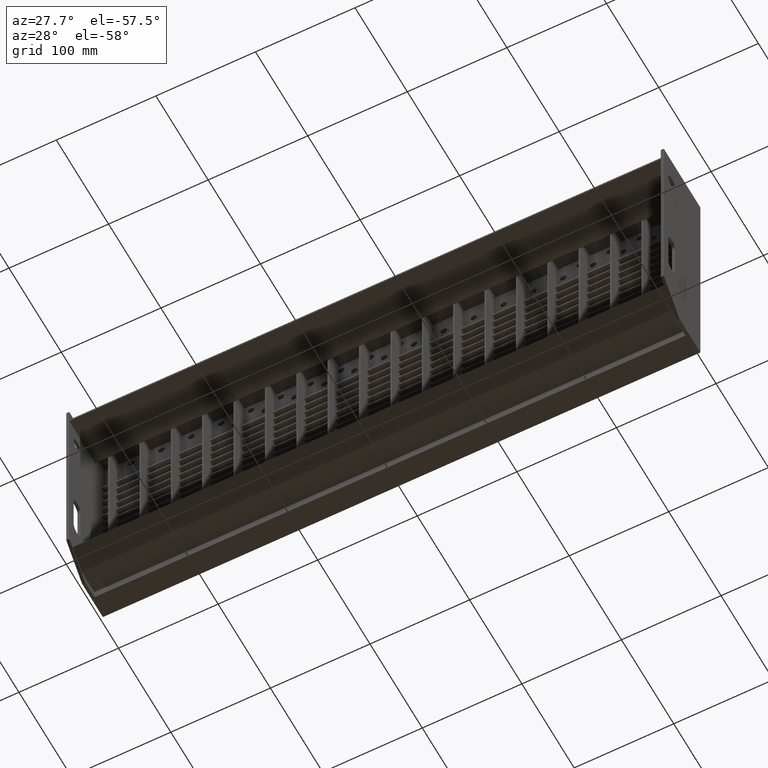
[diagram: clean part render]
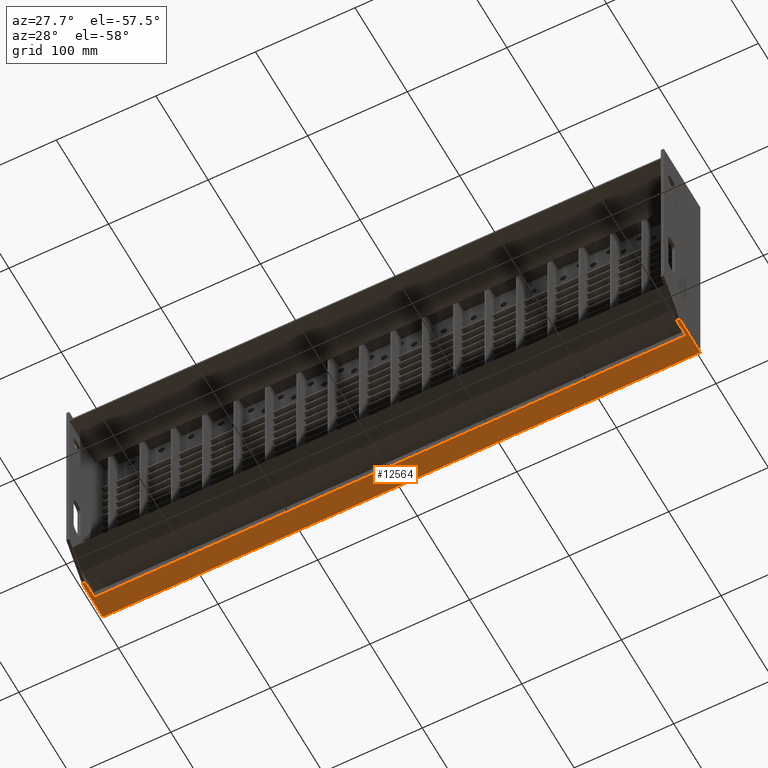
[diagram: same view with one face highlighted and labeled with its STEP entity id]
A machine part, auxiliary view. The second image highlights one B-rep face of the part: STEP entity #12564.
In plain terms, the highlighted planar face has unit normal (0, 0, -1).
Its self-contained STEP definition (entity closure, byte-faithful):
#10 = DIRECTION ( 'NONE',  ( 0.0000000000000000000, 0.0000000000000000000, -1.000000000000000000 ) ) ;
#89 = EDGE_CURVE ( 'NONE', #11671, #13235, #15089, .T. ) ;
#1422 = CARTESIAN_POINT ( 'NONE',  ( -297.0000000000000000, 30.00000000000011700, -240.0000000000000000 ) ) ;
#1693 = DIRECTION ( 'NONE',  ( 1.000000000000000000, 0.0000000000000000000, 0.0000000000000000000 ) ) ;
#2113 = LINE ( 'NONE', #1422, #23220 ) ;
#2391 = ORIENTED_EDGE ( 'NONE', *, *, #11230, .F. ) ;
#3293 = EDGE_CURVE ( 'NONE', #13849, #16596, #24852, .T. ) ;
#3748 = DIRECTION ( 'NONE',  ( 1.000000000000000000, -0.0000000000000000000, -0.0000000000000000000 ) ) ;
#4230 = VECTOR ( 'NONE', #24092, 1000.000000000000000 ) ;
#4386 = EDGE_CURVE ( 'NONE', #15659, #21180, #6316, .T. ) ;
#4472 = LINE ( 'NONE', #26147, #10547 ) ;
#4907 = CARTESIAN_POINT ( 'NONE',  ( 297.0000000000000000, 70.00000000000011400, -240.0000000000000000 ) ) ;
#5304 = CARTESIAN_POINT ( 'NONE',  ( -300.0000000000000000, 70.00000000000011400, -240.0000000000000000 ) ) ;
#5682 = VECTOR ( 'NONE', #10458, 1000.000000000000000 ) ;
#6014 = CARTESIAN_POINT ( 'NONE',  ( -297.0000000000000000, 48.00000000000011400, -240.0000000000000000 ) ) ;
#6201 = LINE ( 'NONE', #5304, #16403 ) ;
#6316 = LINE ( 'NONE', #22779, #5682 ) ;
#6882 = CARTESIAN_POINT ( 'NONE',  ( 297.0000000000000000, 48.00000000000011400, -240.0000000000000000 ) ) ;
#7783 = EDGE_CURVE ( 'NONE', #13849, #21928, #2113, .T. ) ;
#8631 = ORIENTED_EDGE ( 'NONE', *, *, #12115, .F. ) ;
#9006 = ORIENTED_EDGE ( 'NONE', *, *, #3293, .F. ) ;
#9353 = CARTESIAN_POINT ( 'NONE',  ( -300.0000000000000000, 30.00000000000011700, -240.0000000000000000 ) ) ;
#9827 = CARTESIAN_POINT ( 'NONE',  ( 300.0000000000000000, 70.00000000000011400, -240.0000000000000000 ) ) ;
#10225 = PLANE ( 'NONE',  #23531 ) ;
#10458 = DIRECTION ( 'NONE',  ( -0.0000000000000000000, 1.000000000000000000, -0.0000000000000000000 ) ) ;
#10547 = VECTOR ( 'NONE', #1693, 1000.000000000000000 ) ;
#10920 = ORIENTED_EDGE ( 'NONE', *, *, #7783, .T. ) ;
#11230 = EDGE_CURVE ( 'NONE', #16596, #21180, #15043, .T. ) ;
#11671 = VERTEX_POINT ( 'NONE', #24582 ) ;
#12038 = CARTESIAN_POINT ( 'NONE',  ( -297.0000000000000000, 30.00000000000011700, -240.0000000000000000 ) ) ;
#12115 = EDGE_CURVE ( 'NONE', #15659, #11671, #4472, .T. ) ;
#12281 = CARTESIAN_POINT ( 'NONE',  ( 297.0000000000000000, 70.00000000000011400, -240.0000000000000000 ) ) ;
#12564 = ADVANCED_FACE ( 'NONE', ( #15299 ), #10225, .T. ) ;
#13045 = EDGE_LOOP ( 'NONE', ( #24319, #8631, #17683, #2391, #9006, #10920, #19739, #15306 ) ) ;
#13235 = VERTEX_POINT ( 'NONE', #9827 ) ;
#13399 = VECTOR ( 'NONE', #23335, 1000.000000000000000 ) ;
#13849 = VERTEX_POINT ( 'NONE', #12038 ) ;
#14330 = DIRECTION ( 'NONE',  ( -1.000000000000000000, 0.0000000000000000000, -0.0000000000000000000 ) ) ;
#14688 = DIRECTION ( 'NONE',  ( 0.0000000000000000000, 1.000000000000000000, 0.0000000000000000000 ) ) ;
#15043 = LINE ( 'NONE', #22056, #16310 ) ;
#15089 = LINE ( 'NONE', #20522, #4230 ) ;
#15248 = CARTESIAN_POINT ( 'NONE',  ( -297.0000000000000000, 70.00000000000011400, -240.0000000000000000 ) ) ;
#15299 = FACE_OUTER_BOUND ( 'NONE', #13045, .T. ) ;
#15306 = ORIENTED_EDGE ( 'NONE', *, *, #21216, .T. ) ;
#15659 = VERTEX_POINT ( 'NONE', #18024 ) ;
#16310 = VECTOR ( 'NONE', #3748, 1000.000000000000000 ) ;
#16403 = VECTOR ( 'NONE', #21645, 1000.000000000000000 ) ;
#16596 = VERTEX_POINT ( 'NONE', #6014 ) ;
#17439 = VERTEX_POINT ( 'NONE', #24804 ) ;
#17683 = ORIENTED_EDGE ( 'NONE', *, *, #4386, .T. ) ;
#18024 = CARTESIAN_POINT ( 'NONE',  ( 297.0000000000000000, 30.00000000000011700, -240.0000000000000000 ) ) ;
#18113 = DIRECTION ( 'NONE',  ( -1.000000000000000000, 0.0000000000000000000, 0.0000000000000000000 ) ) ;
#19739 = ORIENTED_EDGE ( 'NONE', *, *, #26286, .T. ) ;
#20522 = CARTESIAN_POINT ( 'NONE',  ( 300.0000000000000000, 70.00000000000011400, -240.0000000000000000 ) ) ;
#21180 = VERTEX_POINT ( 'NONE', #6882 ) ;
#21216 = EDGE_CURVE ( 'NONE', #17439, #13235, #23660, .T. ) ;
#21645 = DIRECTION ( 'NONE',  ( 0.0000000000000000000, 1.000000000000000000, 0.0000000000000000000 ) ) ;
#21928 = VERTEX_POINT ( 'NONE', #9353 ) ;
#22056 = CARTESIAN_POINT ( 'NONE',  ( -373.1577310586390000, 48.00000000000011400, -240.0000000000000000 ) ) ;
#22779 = CARTESIAN_POINT ( 'NONE',  ( 297.0000000000000000, 70.00000000000011400, -240.0000000000000000 ) ) ;
#23220 = VECTOR ( 'NONE', #18113, 1000.000000000000000 ) ;
#23335 = DIRECTION ( 'NONE',  ( 1.000000000000000000, 0.0000000000000000000, 0.0000000000000000000 ) ) ;
#23531 = AXIS2_PLACEMENT_3D ( 'NONE', #12281, #10, #14330 ) ;
#23660 = LINE ( 'NONE', #4907, #13399 ) ;
#24092 = DIRECTION ( 'NONE',  ( -0.0000000000000000000, 1.000000000000000000, -0.0000000000000000000 ) ) ;
#24240 = VECTOR ( 'NONE', #14688, 1000.000000000000000 ) ;
#24319 = ORIENTED_EDGE ( 'NONE', *, *, #89, .F. ) ;
#24582 = CARTESIAN_POINT ( 'NONE',  ( 300.0000000000000000, 30.00000000000011700, -240.0000000000000000 ) ) ;
#24804 = CARTESIAN_POINT ( 'NONE',  ( -300.0000000000000000, 70.00000000000011400, -240.0000000000000000 ) ) ;
#24852 = LINE ( 'NONE', #15248, #24240 ) ;
#26147 = CARTESIAN_POINT ( 'NONE',  ( 297.0000000000000000, 30.00000000000011700, -240.0000000000000000 ) ) ;
#26286 = EDGE_CURVE ( 'NONE', #21928, #17439, #6201, .T. ) ;